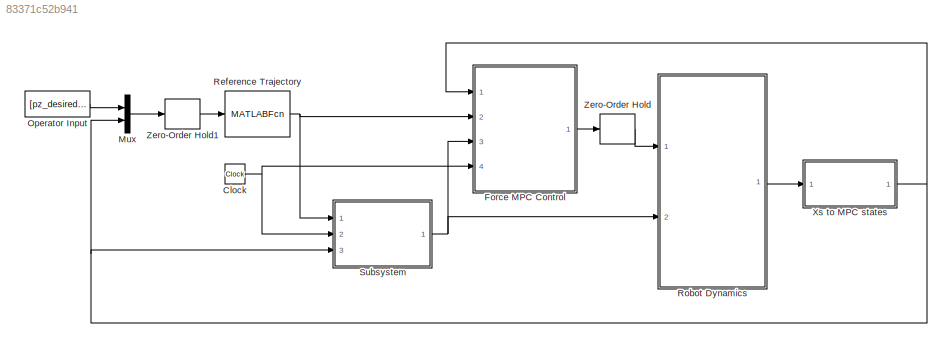
MODEL slx_83371c52b941
KIND model
CONFIG AbsTol = auto
CONFIG EnableMultiTasking = off
CONFIG FixedStep = 0.01
CONFIG MaxStep = auto
CONFIG MinStep = auto
CONFIG RelTol = 1e-3
CONFIG SampleTimeConstraint = Unconstrained
CONFIG SolverName = FixedStepAuto
CONFIG StartTime = 0.0
CONFIG StopTime = tSim
BLOCK [Clock] Clock
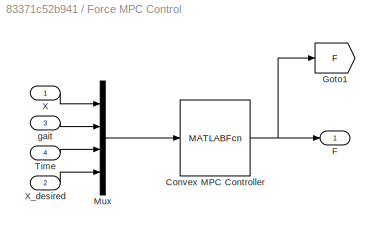
BLOCK [SubSystem] Force MPC Control
  Ports = [4, 1]
  RequestExecContextInheritance = off
BLOCK [MATLABFcn] Force MPC Control/Convex MPC Controller
  MATLABFcn = convexMPC(u(1:13), u(14:29+12*k), u(30+12*k), u(31+12*k:13*k+30+12*k))
  Output1D = off
  OutputDimensions = [12 1]
  OutputSignalType = real
  Ports = [1, 1]
BLOCK [Outport] Force MPC Control/F
BLOCK [Goto] Force MPC Control/Goto1
  GotoTag = F
  TagVisibility = global
BLOCK [Mux] Force MPC Control/Mux
  DisplayOption = bar
  Ports = [4, 1]
BLOCK [Inport] Force MPC Control/Time
  Port = 4
BLOCK [Inport] Force MPC Control/X
BLOCK [Inport] Force MPC Control/X_desired
  Port = 2
BLOCK [Inport] Force MPC Control/gait
  Port = 3
BLOCK [Mux] Mux
  DisplayOption = bar
  Inputs = 2
  Ports = [2, 1]
BLOCK [Constant] Operator Input
  Value = [pz_desired; px_dot_desired; py_dot_desired; yaw_dot_desired]
BLOCK [MATLABFcn] Reference Trajectory
  MATLABFcn = genTrajectory(u(1:4), u(5:17))
  Ports = [1, 1]
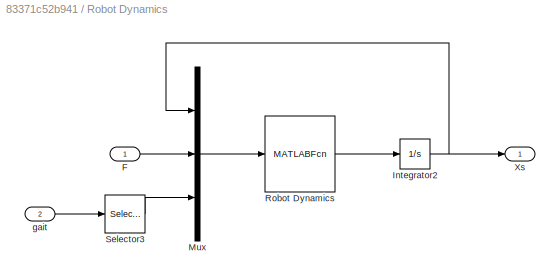
BLOCK [SubSystem] Robot Dynamics
  Ports = [2, 1]
  RequestExecContextInheritance = off
BLOCK [Inport] Robot Dynamics/F
BLOCK [Integrator] Robot Dynamics/Integrator2
  InitialCondition = Xs0
  Ports = [1, 1]
BLOCK [Mux] Robot Dynamics/Mux
  DisplayOption = bar
  Inputs = 3
  Ports = [3, 1]
BLOCK [MATLABFcn] Robot Dynamics/Robot Dynamics
  MATLABFcn = robotDynamics(u(1:18), u(19:30), u(31:46))
  Output1D = off
  OutputDimensions = [18 1]
  OutputSignalType = real
  Ports = [1, 1]
BLOCK [Selector] Robot Dynamics/Selector3
  IndexOptions = Index vector (dialog)
  Indices = [1:16]
  InputPortWidth = 16 + 12*k
  OutputSizes = 1
  Ports = [1, 1]
BLOCK [Outport] Robot Dynamics/Xs
BLOCK [Inport] Robot Dynamics/gait
  Port = 2
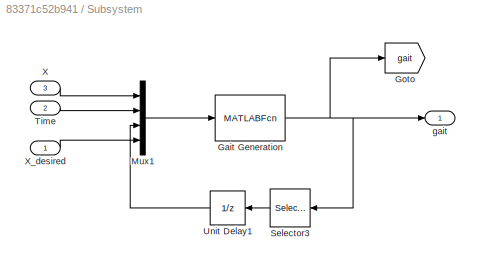
BLOCK [SubSystem] Subsystem
  Ports = [3, 1]
  RequestExecContextInheritance = off
BLOCK [MATLABFcn] Subsystem/Gait Generation
  MATLABFcn = gaitGeneration(u(1:13), u(14), u(15:26), u(27:13*k+26))
  Output1D = off
  OutputDimensions = [16+12*k, 1]
  OutputSignalType = real
  Ports = [1, 1]
BLOCK [Goto] Subsystem/Goto
  GotoTag = gait
  TagVisibility = global
BLOCK [Mux] Subsystem/Mux1
  DisplayOption = bar
  Ports = [4, 1]
BLOCK [Selector] Subsystem/Selector3
  IndexOptions = Index vector (dialog)
  Indices = [1:12]
  InputPortWidth = 16 + 12*k
  NameLocation = top
  OutputSizes = 1
  Ports = [1, 1]
BLOCK [Inport] Subsystem/Time
  Port = 2
BLOCK [UnitDelay] Subsystem/Unit Delay1
  HasFrameUpgradeWarning = on
  InitialCondition = pf_0
  NameLocation = top
  SampleTime = -1
BLOCK [Inport] Subsystem/X
  Port = 3
BLOCK [Inport] Subsystem/X_desired
BLOCK [Outport] Subsystem/gait
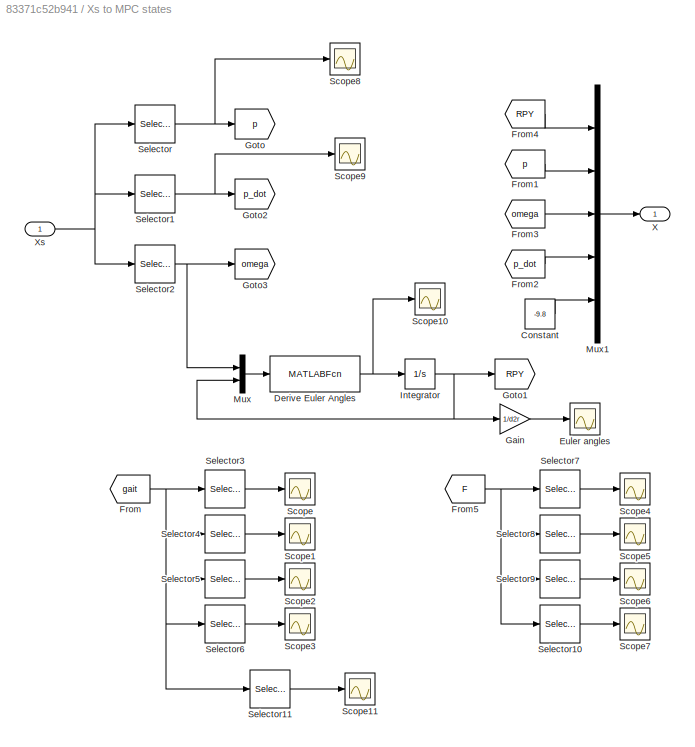
BLOCK [SubSystem] Xs to MPC states
  Ports = [1, 1]
  RequestExecContextInheritance = off
BLOCK [Constant] Xs to MPC states/Constant
  Value = -9.8
BLOCK [MATLABFcn] Xs to MPC states/Derive Euler Angles
  MATLABFcn = derivedEulerangles(u(1:3), u(4:6))
  Output1D = off
  OutputDimensions = [3 1]
  OutputSignalType = real
  Ports = [1, 1]
BLOCK [Scope] Xs to MPC states/Euler angles
  Floating = off
  NumInputPorts = 1
  Ports = [1]
  ScopeSpecificationString = Simulink.scopes.TimeScopeBlockCfg('CurrentConfiguration', extmgr.ConfigurationSet(extmgr.Configuration('Core','General UI',true),extmgr.Configuration('Core','Source UI',true),extmgr.Configuration('Sources','WiredSimulink',true,'DataLoggingVariableName','ScopeData1'),extmgr.Configuration('Visuals','Time Domain',true,'SerializedDisplays',{struct('MinYLimReal','-26582.54673','MaxYLimReal','138673.918...<+1469ch>
BLOCK [From] Xs to MPC states/From
  GotoTag = gait
  TagVisibility = global
BLOCK [From] Xs to MPC states/From1
  GotoTag = p
  TagVisibility = global
BLOCK [From] Xs to MPC states/From2
  GotoTag = p_dot
  TagVisibility = global
BLOCK [From] Xs to MPC states/From3
  GotoTag = omega
  TagVisibility = global
BLOCK [From] Xs to MPC states/From4
  GotoTag = RPY
  TagVisibility = global
BLOCK [From] Xs to MPC states/From5
  GotoTag = F
  TagVisibility = global
BLOCK [Gain] Xs to MPC states/Gain
  Gain = 1/d2r
BLOCK [Goto] Xs to MPC states/Goto
  GotoTag = p
  TagVisibility = global
BLOCK [Goto] Xs to MPC states/Goto1
  GotoTag = RPY
  TagVisibility = global
BLOCK [Goto] Xs to MPC states/Goto2
  GotoTag = p_dot
  TagVisibility = global
BLOCK [Goto] Xs to MPC states/Goto3
  GotoTag = omega
  TagVisibility = global
BLOCK [Integrator] Xs to MPC states/Integrator
  InitialCondition = RPY0
  Ports = [1, 1]
BLOCK [Mux] Xs to MPC states/Mux
  DisplayOption = bar
  Inputs = 2
  Ports = [2, 1]
BLOCK [Mux] Xs to MPC states/Mux1
  DisplayOption = bar
  Inputs = 5
  Ports = [5, 1]
BLOCK [Scope] Xs to MPC states/Scope
  Floating = off
  NumInputPorts = 1
  Ports = [1]
  ScopeSpecificationString = Simulink.scopes.TimeScopeBlockCfg('CurrentConfiguration', extmgr.ConfigurationSet(extmgr.Configuration('Core','General UI',true),extmgr.Configuration('Core','Source UI',true),extmgr.Configuration('Sources','WiredSimulink',true,'DataLoggingVariableName','ScopeData2'),extmgr.Configuration('Visuals','Time Domain',true,'SerializedDisplays',{struct('MinYLimReal','-0.47493','MaxYLimReal','2.99438','YLab...<+1843ch>
BLOCK [Scope] Xs to MPC states/Scope1
  Floating = off
  NumInputPorts = 1
  Ports = [1]
  ScopeSpecificationString = Simulink.scopes.TimeScopeBlockCfg('CurrentConfiguration', extmgr.ConfigurationSet(extmgr.Configuration('Core','General UI',true),extmgr.Configuration('Core','Source UI',true),extmgr.Configuration('Sources','WiredSimulink',true,'DataLoggingVariableName','ScopeData3'),extmgr.Configuration('Visuals','Time Domain',true,'SerializedDisplays',{struct('MinYLimReal','-0.49989','MaxYLimReal','4.499','YLabel...<+1449ch>
BLOCK [Scope] Xs to MPC states/Scope10
  Floating = off
  NumInputPorts = 1
  Ports = [1]
  ScopeSpecificationString = Simulink.scopes.TimeScopeBlockCfg('CurrentConfiguration', extmgr.ConfigurationSet(extmgr.Configuration('Core','General UI',true),extmgr.Configuration('Core','Source UI',true),extmgr.Configuration('Sources','WiredSimulink',true,'DataLoggingVariableName','ScopeData7'),extmgr.Configuration('Visuals','Time Domain',true),extmgr.Configuration('Tools','Plot Navigation',true),extmgr.Configuration('Tools',...<+40ch>
BLOCK [Scope] Xs to MPC states/Scope11
  Floating = off
  NumInputPorts = 1
  Ports = [1]
  ScopeSpecificationString = Simulink.scopes.TimeScopeBlockCfg('CurrentConfiguration', extmgr.ConfigurationSet(extmgr.Configuration('Core','General UI',true),extmgr.Configuration('Core','Source UI',true),extmgr.Configuration('Sources','WiredSimulink',true,'DataLoggingVariableName','ScopeData1'),extmgr.Configuration('Visuals','Time Domain',true,'SerializedDisplays',{struct('MinYLimReal','-0.125','MaxYLimReal','1.125','YLabelRe...<+1550ch>
BLOCK [Scope] Xs to MPC states/Scope2
  Floating = off
  NumInputPorts = 1
  Ports = [1]
  ScopeSpecificationString = Simulink.scopes.TimeScopeBlockCfg('CurrentConfiguration', extmgr.ConfigurationSet(extmgr.Configuration('Core','General UI',true),extmgr.Configuration('Core','Source UI',true),extmgr.Configuration('Sources','WiredSimulink',true,'DataLoggingVariableName','ScopeData4'),extmgr.Configuration('Visuals','Time Domain',true),extmgr.Configuration('Tools','Plot Navigation',true),extmgr.Configuration('Tools',...<+40ch>
BLOCK [Scope] Xs to MPC states/Scope3
  Floating = off
  NumInputPorts = 1
  Ports = [1]
  ScopeSpecificationString = Simulink.scopes.TimeScopeBlockCfg('CurrentConfiguration', extmgr.ConfigurationSet(extmgr.Configuration('Core','General UI',true),extmgr.Configuration('Core','Source UI',true),extmgr.Configuration('Sources','WiredSimulink',true,'DataLoggingVariableName','ScopeData5'),extmgr.Configuration('Visuals','Time Domain',true,'SerializedDisplays',{struct('MinYLimReal','-0.3535','MaxYLimReal','0.1815','YLabel...<+1392ch>
BLOCK [Scope] Xs to MPC states/Scope4
  Floating = off
  NumInputPorts = 1
  Ports = [1]
  ScopeSpecificationString = Simulink.scopes.TimeScopeBlockCfg('CurrentConfiguration', extmgr.ConfigurationSet(extmgr.Configuration('Core','General UI',true),extmgr.Configuration('Core','Source UI',true),extmgr.Configuration('Sources','WiredSimulink',true,'DataLoggingVariableName','ScopeData1'),extmgr.Configuration('Visuals','Time Domain',true,'SerializedDisplays',{struct('MinYLimReal','-532.8','MaxYLimReal','799.2','YLabelRe...<+1848ch>
BLOCK [Scope] Xs to MPC states/Scope5
  Floating = off
  NumInputPorts = 1
  Ports = [1]
  ScopeSpecificationString = Simulink.scopes.TimeScopeBlockCfg('CurrentConfiguration', extmgr.ConfigurationSet(extmgr.Configuration('Core','General UI',true),extmgr.Configuration('Core','Source UI',true),extmgr.Configuration('Sources','WiredSimulink',true,'DataLoggingVariableName','ScopeData2'),extmgr.Configuration('Visuals','Time Domain',true,'SerializedDisplays',{struct('MinYLimReal','-56.02615','MaxYLimReal','504.23463','Y...<+1479ch>
BLOCK [Scope] Xs to MPC states/Scope6
  Floating = off
  NumInputPorts = 1
  Ports = [1]
  ScopeSpecificationString = Simulink.scopes.TimeScopeBlockCfg('CurrentConfiguration', extmgr.ConfigurationSet(extmgr.Configuration('Core','General UI',true),extmgr.Configuration('Core','Source UI',true),extmgr.Configuration('Sources','WiredSimulink',true,'DataLoggingVariableName','ScopeData3'),extmgr.Configuration('Visuals','Time Domain',true,'SerializedDisplays',{struct('MinYLimReal','-1.00000','MaxYLimReal','1.00000','YLab...<+1423ch>
BLOCK [Scope] Xs to MPC states/Scope7
  Floating = off
  NumInputPorts = 1
  Ports = [1]
  ScopeSpecificationString = Simulink.scopes.TimeScopeBlockCfg('CurrentConfiguration', extmgr.ConfigurationSet(extmgr.Configuration('Core','General UI',true),extmgr.Configuration('Core','Source UI',true),extmgr.Configuration('Sources','WiredSimulink',true,'DataLoggingVariableName','ScopeData4'),extmgr.Configuration('Visuals','Time Domain',true,'SerializedDisplays',{struct('MinYLimReal','-26.35997','MaxYLimReal','237.23972','Y...<+1436ch>
BLOCK [Scope] Xs to MPC states/Scope8
  Floating = off
  NumInputPorts = 1
  Ports = [1]
  ScopeSpecificationString = Simulink.scopes.TimeScopeBlockCfg('CurrentConfiguration', extmgr.ConfigurationSet(extmgr.Configuration('Core','General UI',true),extmgr.Configuration('Core','Source UI',true),extmgr.Configuration('Sources','WiredSimulink',true,'DataLoggingVariableName','ScopeData5'),extmgr.Configuration('Visuals','Time Domain',true,'SerializedDisplays',{struct('MinYLimReal','-0.51766','MaxYLimReal','4.65896','YLab...<+1515ch>
BLOCK [Scope] Xs to MPC states/Scope9
  Floating = off
  NumInputPorts = 1
  Ports = [1]
  ScopeSpecificationString = Simulink.scopes.TimeScopeBlockCfg('CurrentConfiguration', extmgr.ConfigurationSet(extmgr.Configuration('Core','General UI',true),extmgr.Configuration('Core','Source UI',true),extmgr.Configuration('Sources','WiredSimulink',true,'DataLoggingVariableName','ScopeData6'),extmgr.Configuration('Visuals','Time Domain',true,'SerializedDisplays',{struct('MinYLimReal','-2.43574','MaxYLimReal','5.92595','YLab...<+1453ch>
BLOCK [Selector] Xs to MPC states/Selector
  IndexOptions = Index vector (dialog)
  Indices = [1:3]
  InputPortWidth = 18
  OutputSizes = 1
  Ports = [1, 1]
BLOCK [Selector] Xs to MPC states/Selector1
  IndexOptions = Index vector (dialog)
  Indices = [4:6]
  InputPortWidth = 18
  OutputSizes = 1
  Ports = [1, 1]
BLOCK [Selector] Xs to MPC states/Selector10
  IndexOptions = Index vector (dialog)
  Indices = [10:12]
  InputPortWidth = 12
  OutputSizes = 1
  Ports = [1, 1]
BLOCK [Selector] Xs to MPC states/Selector11
  IndexOptions = Index vector (dialog)
  Indices = [13:16]
  InputPortWidth = 16+12*k
  OutputSizes = 1
  Ports = [1, 1]
BLOCK [Selector] Xs to MPC states/Selector2
  IndexOptions = Index vector (dialog)
  Indices = [7:9]
  InputPortWidth = 18
  OutputSizes = 1
  Ports = [1, 1]
BLOCK [Selector] Xs to MPC states/Selector3
  IndexOptions = Index vector (dialog)
  Indices = [1:3]
  InputPortWidth = 16+12*k
  OutputSizes = 1
  Ports = [1, 1]
BLOCK [Selector] Xs to MPC states/Selector4
  IndexOptions = Index vector (dialog)
  Indices = [4:6]
  InputPortWidth = 16+12*k
  OutputSizes = 1
  Ports = [1, 1]
BLOCK [Selector] Xs to MPC states/Selector5
  IndexOptions = Index vector (dialog)
  Indices = [7:9]
  InputPortWidth = 16+12*k
  OutputSizes = 1
  Ports = [1, 1]
BLOCK [Selector] Xs to MPC states/Selector6
  IndexOptions = Index vector (dialog)
  Indices = [10:12]
  InputPortWidth = 16+12*k
  OutputSizes = 1
  Ports = [1, 1]
BLOCK [Selector] Xs to MPC states/Selector7
  IndexOptions = Index vector (dialog)
  Indices = [1:3]
  InputPortWidth = 12
  OutputSizes = 1
  Ports = [1, 1]
BLOCK [Selector] Xs to MPC states/Selector8
  IndexOptions = Index vector (dialog)
  Indices = [4:6]
  InputPortWidth = 12
  OutputSizes = 1
  Ports = [1, 1]
BLOCK [Selector] Xs to MPC states/Selector9
  IndexOptions = Index vector (dialog)
  Indices = [7:9]
  InputPortWidth = 12
  OutputSizes = 1
  Ports = [1, 1]
BLOCK [Outport] Xs to MPC states/X
BLOCK [Inport] Xs to MPC states/Xs
BLOCK [ZeroOrderHold] Zero-Order Hold
  SampleTime = MPCParams.dt_MPC
BLOCK [ZeroOrderHold] Zero-Order Hold1
  SampleTime = MPCParams.dt_MPC
NET Clock:1 -> Force MPC Control:4, Subsystem:2
NET Force MPC Control/Convex MPC Controller:1 -> Force MPC Control/F:1, Force MPC Control/Goto1:1
LINE Force MPC Control/Mux:1 -> Force MPC Control/Convex MPC Controller:1
LINE Force MPC Control/Time:1 -> Force MPC Control/Mux:3
LINE Force MPC Control/X:1 -> Force MPC Control/Mux:1
LINE Force MPC Control/X_desired:1 -> Force MPC Control/Mux:4
LINE Force MPC Control/gait:1 -> Force MPC Control/Mux:2
LINE Force MPC Control:1 -> Zero-Order Hold:1
LINE Mux:1 -> Zero-Order Hold1:1
LINE Operator Input:1 -> Mux:1
NET Reference Trajectory:1 -> Force MPC Control:2, Subsystem:1
LINE Robot Dynamics/F:1 -> Robot Dynamics/Mux:2
NET Robot Dynamics/Integrator2:1 -> Robot Dynamics/Mux:1, Robot Dynamics/Xs:1
LINE Robot Dynamics/Mux:1 -> Robot Dynamics/Robot Dynamics:1
LINE Robot Dynamics/Robot Dynamics:1 -> Robot Dynamics/Integrator2:1
LINE Robot Dynamics/Selector3:1 -> Robot Dynamics/Mux:3
LINE Robot Dynamics/gait:1 -> Robot Dynamics/Selector3:1
LINE Robot Dynamics:1 -> Xs to MPC states:1
NET Subsystem/Gait Generation:1 -> Subsystem/Goto:1, Subsystem/Selector3:1, Subsystem/gait:1
LINE Subsystem/Mux1:1 -> Subsystem/Gait Generation:1
LINE Subsystem/Selector3:1 -> Subsystem/Unit Delay1:1
LINE Subsystem/Time:1 -> Subsystem/Mux1:2
LINE Subsystem/Unit Delay1:1 -> Subsystem/Mux1:3
LINE Subsystem/X:1 -> Subsystem/Mux1:1
LINE Subsystem/X_desired:1 -> Subsystem/Mux1:4
NET Subsystem:1 -> Force MPC Control:3, Robot Dynamics:2
LINE Xs to MPC states/Constant:1 -> Xs to MPC states/Mux1:5
NET Xs to MPC states/Derive Euler Angles:1 -> Xs to MPC states/Integrator:1, Xs to MPC states/Scope10:1
LINE Xs to MPC states/From1:1 -> Xs to MPC states/Mux1:2
LINE Xs to MPC states/From2:1 -> Xs to MPC states/Mux1:4
LINE Xs to MPC states/From3:1 -> Xs to MPC states/Mux1:3
LINE Xs to MPC states/From4:1 -> Xs to MPC states/Mux1:1
NET Xs to MPC states/From5:1 -> Xs to MPC states/Selector10:1, Xs to MPC states/Selector7:1, Xs to MPC states/Selector8:1, Xs to MPC states/Selector9:1
NET Xs to MPC states/From:1 -> Xs to MPC states/Selector11:1, Xs to MPC states/Selector3:1, Xs to MPC states/Selector4:1, Xs to MPC states/Selector5:1, Xs to MPC states/Selector6:1
LINE Xs to MPC states/Gain:1 -> Xs to MPC states/Euler angles:1
NET Xs to MPC states/Integrator:1 -> Xs to MPC states/Gain:1, Xs to MPC states/Goto1:1, Xs to MPC states/Mux:2
LINE Xs to MPC states/Mux1:1 -> Xs to MPC states/X:1
LINE Xs to MPC states/Mux:1 -> Xs to MPC states/Derive Euler Angles:1
LINE Xs to MPC states/Selector10:1 -> Xs to MPC states/Scope7:1
LINE Xs to MPC states/Selector11:1 -> Xs to MPC states/Scope11:1
NET Xs to MPC states/Selector1:1 -> Xs to MPC states/Goto2:1, Xs to MPC states/Scope9:1
NET Xs to MPC states/Selector2:1 -> Xs to MPC states/Goto3:1, Xs to MPC states/Mux:1
LINE Xs to MPC states/Selector3:1 -> Xs to MPC states/Scope:1
LINE Xs to MPC states/Selector4:1 -> Xs to MPC states/Scope1:1
LINE Xs to MPC states/Selector5:1 -> Xs to MPC states/Scope2:1
LINE Xs to MPC states/Selector6:1 -> Xs to MPC states/Scope3:1
LINE Xs to MPC states/Selector7:1 -> Xs to MPC states/Scope4:1
LINE Xs to MPC states/Selector8:1 -> Xs to MPC states/Scope5:1
LINE Xs to MPC states/Selector9:1 -> Xs to MPC states/Scope6:1
NET Xs to MPC states/Selector:1 -> Xs to MPC states/Goto:1, Xs to MPC states/Scope8:1
NET Xs to MPC states/Xs:1 -> Xs to MPC states/Selector1:1, Xs to MPC states/Selector2:1, Xs to MPC states/Selector:1
NET Xs to MPC states:1 -> Force MPC Control:1, Mux:2, Subsystem:3
LINE Zero-Order Hold1:1 -> Reference Trajectory:1
LINE Zero-Order Hold:1 -> Robot Dynamics:1
note: NET lines group one-source signal fan-out (src -> all destinations, sorted); 1:1 wires keep LINE
